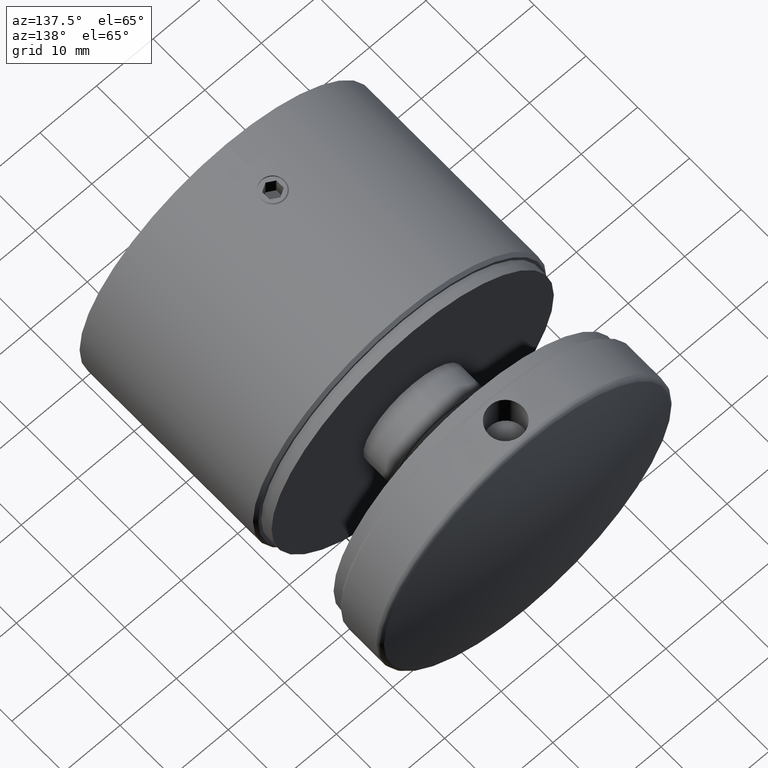
[diagram: clean part render]
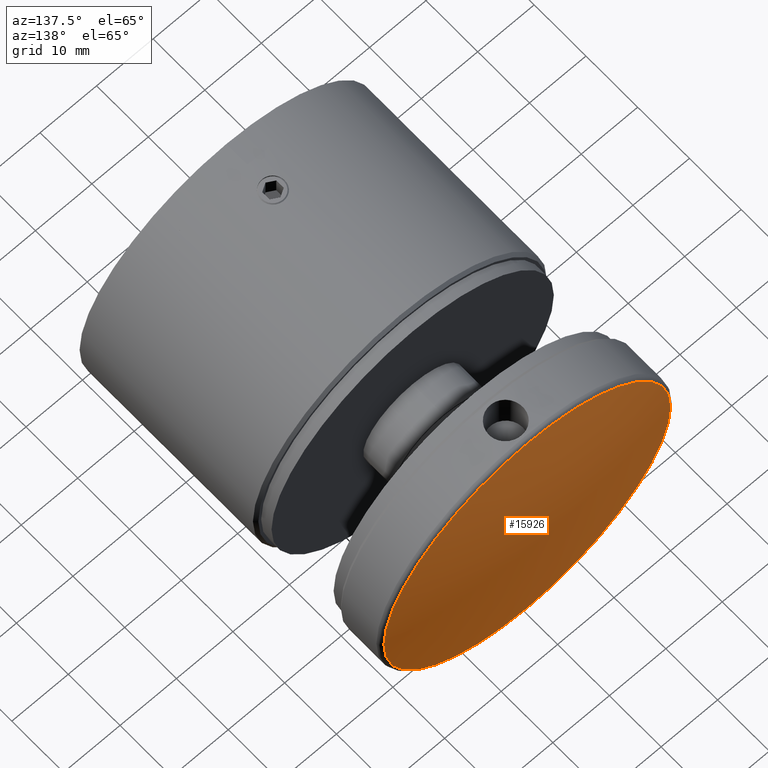
[diagram: same view with one face highlighted and labeled with its STEP entity id]
A machine part, auxiliary view. The second image highlights one B-rep face of the part: STEP entity #15926.
In plain terms, the highlighted spherical surface has radius 114.167 mm.
Its self-contained STEP definition (entity closure, byte-faithful):
#446 = CARTESIAN_POINT ( 'NONE',  ( 0.000000000000000000, 16.14368109908170013, -25.37783004998529890 ) ) ;
#1636 = FACE_OUTER_BOUND ( 'NONE', #6718, .T. ) ;
#2871 = AXIS2_PLACEMENT_3D ( 'NONE', #21101, #13928, #18720 ) ;
#3773 = VERTEX_POINT ( 'NONE', #446 ) ;
#6718 = EDGE_LOOP ( 'NONE', ( #19768 ) ) ;
#10551 = CIRCLE ( 'NONE', #22489, 25.37783004998529890 ) ;
#12959 = CARTESIAN_POINT ( 'NONE',  ( 0.000000000000000000, 16.14368109908170013, 0.000000000000000000 ) ) ;
#13928 = DIRECTION ( 'NONE',  ( 0.000000000000000000, 0.000000000000000000, 1.000000000000000000 ) ) ;
#15926 = ADVANCED_FACE ( 'NONE', ( #1636 ), #23044, .T. ) ;
#18720 = DIRECTION ( 'NONE',  ( 1.000000000000000000, 0.000000000000000000, 0.000000000000000000 ) ) ;
#19768 = ORIENTED_EDGE ( 'NONE', *, *, #21315, .F. ) ;
#21101 = CARTESIAN_POINT ( 'NONE',  ( 0.000000000000000000, -95.16666666666661456, 0.000000000000000000 ) ) ;
#21315 = EDGE_CURVE ( 'NONE', #3773, #3773, #10551, .T. ) ;
#21641 = DIRECTION ( 'NONE',  ( 0.000000000000000000, 0.000000000000000000, -1.000000000000000000 ) ) ;
#21942 = DIRECTION ( 'NONE',  ( -0.000000000000000000, -1.000000000000000000, -0.000000000000000000 ) ) ;
#22489 = AXIS2_PLACEMENT_3D ( 'NONE', #12959, #21942, #21641 ) ;
#23044 = SPHERICAL_SURFACE ( 'NONE', #2871, 114.1666666666666146 ) ;